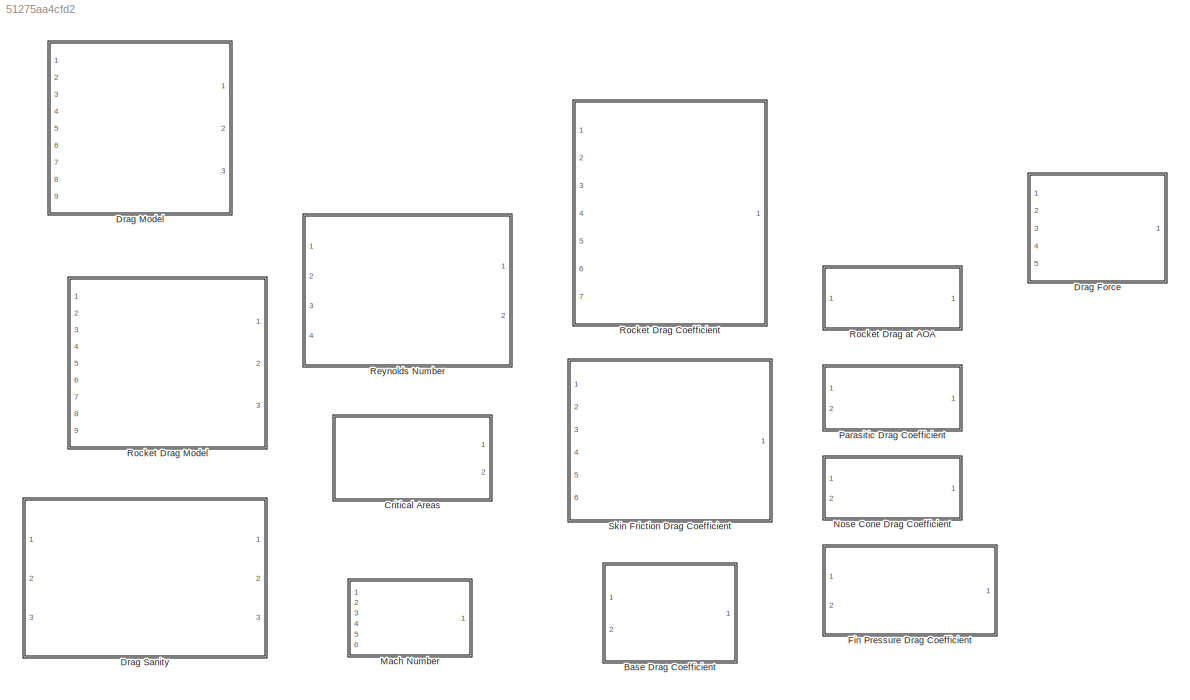
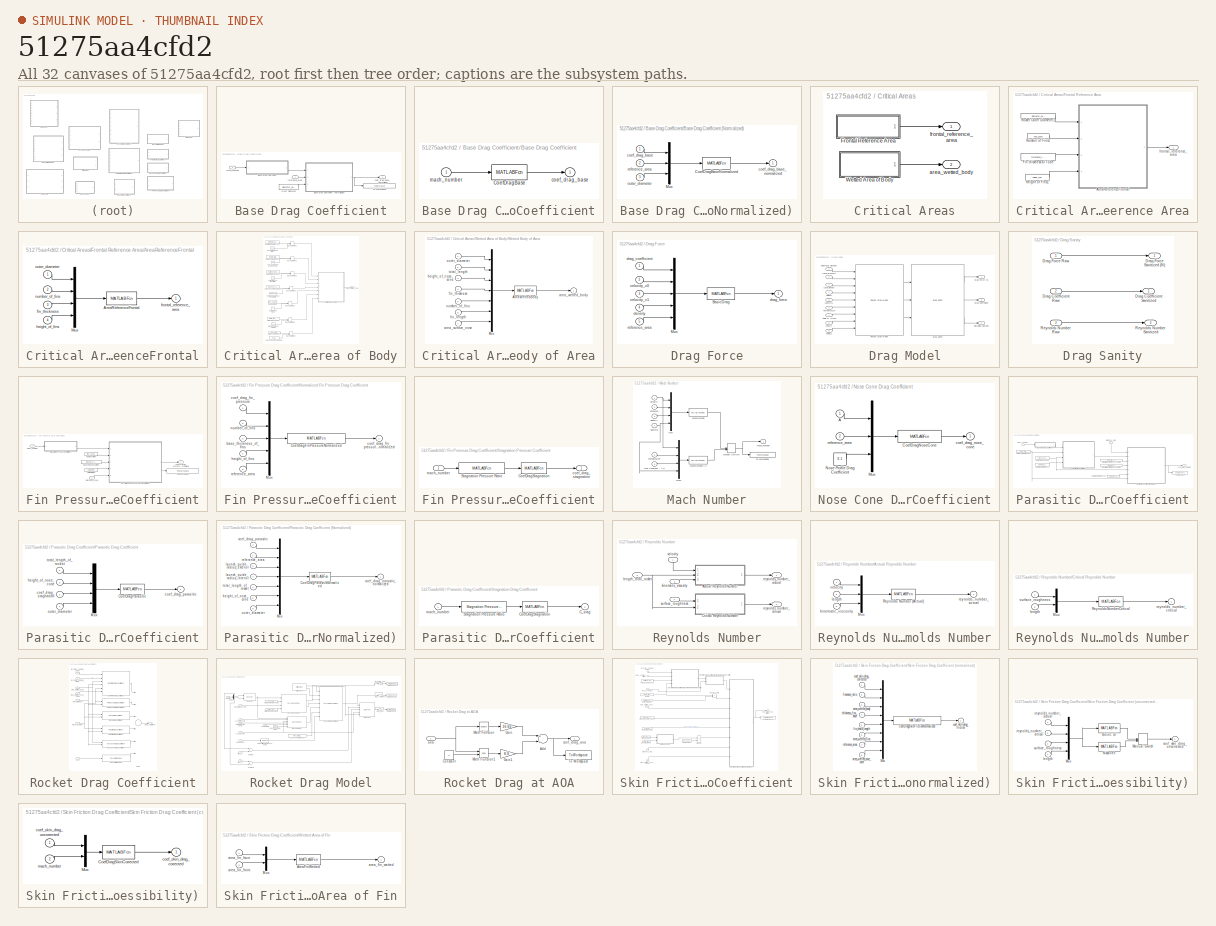
[diagram: thumbnail index - all 32 canvases of the model, root first then tree order]
MODEL slx_51275aa4cfd2
KIND library
CONFIG AbsTol = auto
CONFIG FixedStep = auto
CONFIG MaxStep = auto
CONFIG MinStep = auto
CONFIG RelTol = 1e-3
CONFIG SampleTimeConstraint = Unconstrained
CONFIG Solver = ode45
CONFIG SolverMode = Auto
CONFIG SolverName = ode45
CONFIG StartTime = 0.0
CONFIG StopTime = 10.0
BLOCK [SubSystem] Base Drag Coefficient
  Ports = [2, 1]
  RequestExecContextInheritance = off
BLOCK [SubSystem] Base Drag Coefficient/Base Drag Coefficient
  ErrorFcn = Stateflow.Translate.translate
  PermitHierarchicalResolution = ExplicitOnly
  Ports = [1, 1]
  RequestExecContextInheritance = off
  TreatAsAtomicUnit = on
BLOCK [SubSystem] Base Drag Coefficient/Base Drag Coefficient (Normalized)
  ErrorFcn = Stateflow.Translate.translate
  PermitHierarchicalResolution = ExplicitOnly
  Ports = [3, 1]
  RequestExecContextInheritance = off
  TreatAsAtomicUnit = on
BLOCK [MATLABFcn] Base Drag Coefficient/Base Drag Coefficient (Normalized)/CoefDragBaseNormalized
  MATLABFcn = CoefDragBaseNormalized
  Ports = [1, 1]
BLOCK [Mux] Base Drag Coefficient/Base Drag Coefficient (Normalized)/Mux
  DisplayOption = bar
  Inputs = 3
  Ports = [3, 1]
BLOCK [Inport] Base Drag Coefficient/Base Drag Coefficient (Normalized)/coef_drag_base
  IconDisplay = Port number
BLOCK [Outport] Base Drag Coefficient/Base Drag Coefficient (Normalized)/coef_drag_base_normalized
  IconDisplay = Port number
BLOCK [Inport] Base Drag Coefficient/Base Drag Coefficient (Normalized)/outer_diameter
  IconDisplay = Port number
  Port = 3
BLOCK [Inport] Base Drag Coefficient/Base Drag Coefficient (Normalized)/reference_area
  IconDisplay = Port number
  Port = 2
BLOCK [MATLABFcn] Base Drag Coefficient/Base Drag Coefficient/CoefDragBase
  MATLABFcn = CoefDragBase
  Ports = [1, 1]
BLOCK [Outport] Base Drag Coefficient/Base Drag Coefficient/coef_drag_base
  IconDisplay = Port number
BLOCK [Inport] Base Drag Coefficient/Base Drag Coefficient/mach_number
  IconDisplay = Port number
BLOCK [Constant] Base Drag Coefficient/Outer Diameter
  Value = diameter_outer
BLOCK [ToWorkspace] Base Drag Coefficient/To Workspace
  FixptAsFi = on
  MaxDataPoints = inf
  Ports = [1]
  SampleTime = -1
  Save2DSignal = 3-D array (concatenate along third dimension)
  VariableName = coef_drag_base_normalized
BLOCK [Outport] Base Drag Coefficient/coef_drag_base_normalized
  IconDisplay = Port number
BLOCK [Inport] Base Drag Coefficient/mach_number
  IconDisplay = Port number
  Port = 2
BLOCK [Inport] Base Drag Coefficient/reference_area
  IconDisplay = Port number
BLOCK [SubSystem] Critical Areas
  Ports = [0, 2]
  RequestExecContextInheritance = off
BLOCK [SubSystem] Critical Areas/Frontal Reference Area
  Ports = [0, 1]
  RequestExecContextInheritance = off
  TreatAsAtomicUnit = on
BLOCK [SubSystem] Critical Areas/Frontal Reference Area/AreaReferenceFrontal
  ErrorFcn = Stateflow.Translate.translate
  PermitHierarchicalResolution = ExplicitOnly
  Ports = [4, 1]
  RequestExecContextInheritance = off
  TreatAsAtomicUnit = on
BLOCK [MATLABFcn] Critical Areas/Frontal Reference Area/AreaReferenceFrontal/AreaReferenceFrontal
  MATLABFcn = AreaReferenceFrontal
  Ports = [1, 1]
BLOCK [Mux] Critical Areas/Frontal Reference Area/AreaReferenceFrontal/Mux
  DisplayOption = bar
  Ports = [4, 1]
BLOCK [Inport] Critical Areas/Frontal Reference Area/AreaReferenceFrontal/fin_thickness
  IconDisplay = Port number
  Port = 3
BLOCK [Outport] Critical Areas/Frontal Reference Area/AreaReferenceFrontal/frontal_reference_area
  IconDisplay = Port number
BLOCK [Inport] Critical Areas/Frontal Reference Area/AreaReferenceFrontal/height_of_fins
  IconDisplay = Port number
  Port = 4
BLOCK [Inport] Critical Areas/Frontal Reference Area/AreaReferenceFrontal/number_of_fins
  IconDisplay = Port number
  Port = 2
BLOCK [Inport] Critical Areas/Frontal Reference Area/AreaReferenceFrontal/outer_diameter
  IconDisplay = Port number
BLOCK [Constant] Critical Areas/Frontal Reference Area/Fin thickness at Tube
  Value = thickness_fins_at_tube
BLOCK [Constant] Critical Areas/Frontal Reference Area/Height of Fins1
  Value = height_fins
BLOCK [Constant] Critical Areas/Frontal Reference Area/Number of Fins1
  Value = fins_count
BLOCK [Constant] Critical Areas/Frontal Reference Area/Rocket Outer Diameter1
  Value = diameter_outer
BLOCK [Outport] Critical Areas/Frontal Reference Area/frontal_reference_area
  IconDisplay = Port number
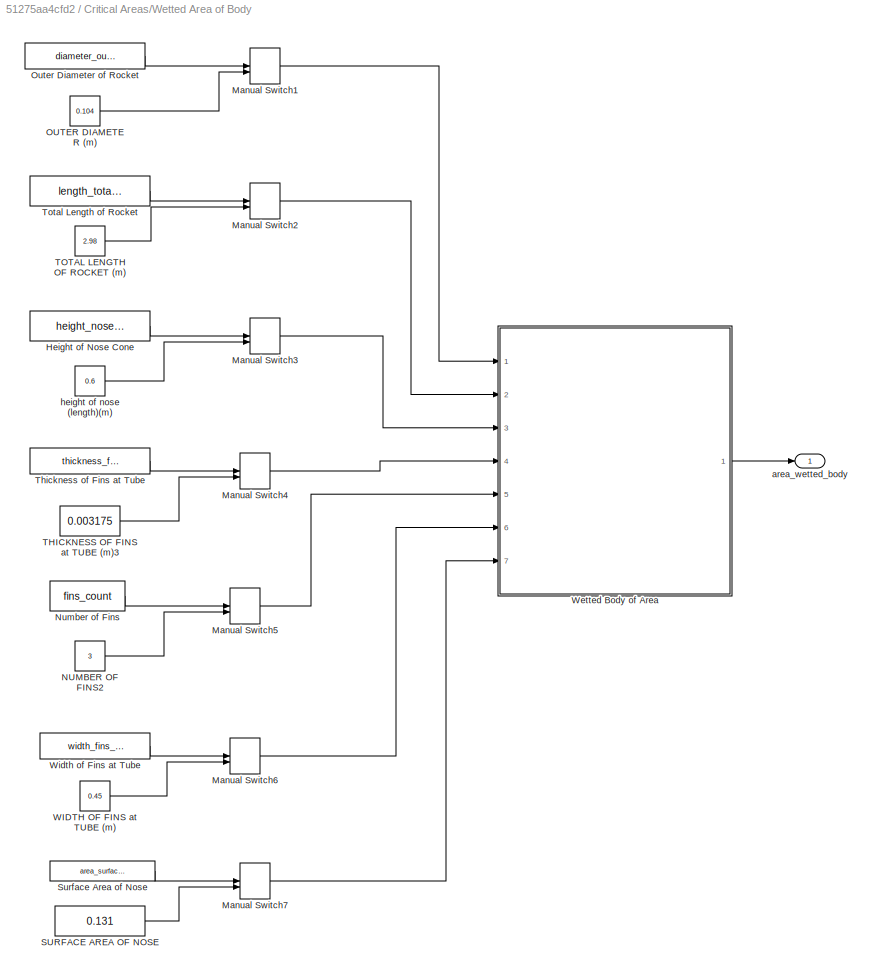
BLOCK [SubSystem] Critical Areas/Wetted Area of Body
  Ports = [0, 1]
  RequestExecContextInheritance = off
  TreatAsAtomicUnit = on
BLOCK [Constant] Critical Areas/Wetted Area of Body/Height of Nose Cone
  Value = height_nose_cone
BLOCK [ManualSwitch] Critical Areas/Wetted Area of Body/Manual Switch1
BLOCK [ManualSwitch] Critical Areas/Wetted Area of Body/Manual Switch2
BLOCK [ManualSwitch] Critical Areas/Wetted Area of Body/Manual Switch3
BLOCK [ManualSwitch] Critical Areas/Wetted Area of Body/Manual Switch4
BLOCK [ManualSwitch] Critical Areas/Wetted Area of Body/Manual Switch5
BLOCK [ManualSwitch] Critical Areas/Wetted Area of Body/Manual Switch6
BLOCK [ManualSwitch] Critical Areas/Wetted Area of Body/Manual Switch7
BLOCK [Constant] Critical Areas/Wetted Area of Body/NUMBER OF FINS2
  Value = 3
BLOCK [Constant] Critical Areas/Wetted Area of Body/Number of Fins
  Value = fins_count
BLOCK [Constant] Critical Areas/Wetted Area of Body/OUTER DIAMETER (m)
  Value = 0.104
BLOCK [Constant] Critical Areas/Wetted Area of Body/Outer Diameter of Rocket
  Value = diameter_outer
BLOCK [Constant] Critical Areas/Wetted Area of Body/SURFACE AREA OF NOSE
  Value = 0.131
BLOCK [Constant] Critical Areas/Wetted Area of Body/Surface Area of Nose
  Value = area_surface_nose
BLOCK [Constant] Critical Areas/Wetted Area of Body/THICKNESS OF FINS at TUBE (m)3
  Value = 0.003175
BLOCK [Constant] Critical Areas/Wetted Area of Body/TOTAL LENGTH OF ROCKET (m)
  Value = 2.98
BLOCK [Constant] Critical Areas/Wetted Area of Body/Thickness of Fins at Tube
  Value = thickness_fins_at_tube
BLOCK [Constant] Critical Areas/Wetted Area of Body/Total Length of Rocket
  Value = length_total_rocket
BLOCK [Constant] Critical Areas/Wetted Area of Body/WIDTH OF FINS at TUBE (m)
  Value = 0.45
BLOCK [SubSystem] Critical Areas/Wetted Area of Body/Wetted Body of Area
  ErrorFcn = Stateflow.Translate.translate
  PermitHierarchicalResolution = ExplicitOnly
  Ports = [7, 1]
  RequestExecContextInheritance = off
  TreatAsAtomicUnit = on
BLOCK [MATLABFcn] Critical Areas/Wetted Area of Body/Wetted Body of Area/AreaWettedBody
  MATLABFcn = AreaWettedBody
  Ports = [1, 1]
BLOCK [Mux] Critical Areas/Wetted Area of Body/Wetted Body of Area/Mux
  DisplayOption = bar
  Inputs = 7
  Ports = [7, 1]
BLOCK [Inport] Critical Areas/Wetted Area of Body/Wetted Body of Area/area_surface_nose
  IconDisplay = Port number
  Port = 7
BLOCK [Outport] Critical Areas/Wetted Area of Body/Wetted Body of Area/area_wetted_body
  IconDisplay = Port number
BLOCK [Inport] Critical Areas/Wetted Area of Body/Wetted Body of Area/fin_length
  IconDisplay = Port number
  Port = 6
BLOCK [Inport] Critical Areas/Wetted Area of Body/Wetted Body of Area/fin_thickness
  IconDisplay = Port number
  Port = 4
BLOCK [Inport] Critical Areas/Wetted Area of Body/Wetted Body of Area/height_of_nose_cone
  IconDisplay = Port number
  Port = 3
BLOCK [Inport] Critical Areas/Wetted Area of Body/Wetted Body of Area/number_of_fins
  IconDisplay = Port number
  Port = 5
BLOCK [Inport] Critical Areas/Wetted Area of Body/Wetted Body of Area/outer_diameter
  IconDisplay = Port number
BLOCK [Inport] Critical Areas/Wetted Area of Body/Wetted Body of Area/total_length
  IconDisplay = Port number
  Port = 2
BLOCK [Constant] Critical Areas/Wetted Area of Body/Width of Fins at Tube
  Value = width_fins_at_tube
BLOCK [Outport] Critical Areas/Wetted Area of Body/area_wetted_body
  IconDisplay = Port number
BLOCK [Constant] Critical Areas/Wetted Area of Body/height of nose (length)(m)
  Value = 0.6
BLOCK [Outport] Critical Areas/area_wetted_body
  IconDisplay = Port number
  Port = 2
BLOCK [Outport] Critical Areas/frontal_reference_area
  IconDisplay = Port number
BLOCK [SubSystem] Drag Force
  ErrorFcn = Stateflow.Translate.translate
  PermitHierarchicalResolution = ExplicitOnly
  Ports = [5, 1]
  RequestExecContextInheritance = off
BLOCK [MATLABFcn] Drag Force/BasicDrag
  MATLABFcn = BasicDrag
  Ports = [1, 1]
BLOCK [Mux] Drag Force/Mux
  DisplayOption = bar
  Inputs = 5
  Ports = [5, 1]
BLOCK [Inport] Drag Force/density
  IconDisplay = Port number
  Port = 4
BLOCK [Inport] Drag Force/drag_coefficient
  IconDisplay = Port number
BLOCK [Outport] Drag Force/drag_force
  IconDisplay = Port number
BLOCK [Inport] Drag Force/reference_area
  IconDisplay = Port number
  Port = 5
BLOCK [Inport] Drag Force/velocity_x0
  IconDisplay = Port number
  Port = 2
BLOCK [Inport] Drag Force/velocity_x1
  IconDisplay = Port number
  Port = 3
BLOCK [SubSystem] Drag Model
  Ports = [9, 3]
  RequestExecContextInheritance = off
BLOCK [Inport] Drag Model/Angle of Attack
  IconDisplay = Port number
  Port = 7
BLOCK [Outport] Drag Model/Drag Coefficient
  IconDisplay = Port number
  Port = 2
BLOCK [Outport] Drag Model/Drag Force (N)
  IconDisplay = Port number
BLOCK [Reference] Drag Model/Drag Sanity  REF=rocket_drag_library/Drag Sanity  (lib defined in slx_51275aa4cfd2)
  Ports = [3, 3]
  SourceBlock = rocket_drag_library/Drag Sanity
  SourceType = SubSystem
BLOCK [Inport] Drag Model/Kinematic Viscosity
  IconDisplay = Port number
BLOCK [Inport] Drag Model/Local Density
  IconDisplay = Port number
  Port = 3
BLOCK [Inport] Drag Model/Local Pressure
  IconDisplay = Port number
  Port = 2
BLOCK [Outport] Drag Model/Reynolds Number
  IconDisplay = Port number
  Port = 3
BLOCK [Reference] Drag Model/Rocket Drag Model  REF=rocket_drag_library/Rocket Drag Model  (lib defined in slx_51275aa4cfd2)
  Ports = [9, 3]
  SourceBlock = rocket_drag_library/Rocket Drag Model
  SourceType = SubSystem
BLOCK [Inport] Drag Model/Temperature
  IconDisplay = Port number
  Port = 6
BLOCK [Inport] Drag Model/Velocity
  IconDisplay = Port number
  Port = 4
BLOCK [Inport] Drag Model/Wind_0
  IconDisplay = Port number
  Port = 8
BLOCK [Inport] Drag Model/Wind_1
  IconDisplay = Port number
  Port = 9
BLOCK [Inport] Drag Model/\gamma
  IconDisplay = Port number
  Port = 5
BLOCK [SubSystem] Drag Sanity
  Ports = [3, 3]
  RequestExecContextInheritance = off
BLOCK [Inport] Drag Sanity/Drag Coefficient Raw
  IconDisplay = Port number
  Port = 2
BLOCK [Outport] Drag Sanity/Drag Coefficient Sanitized
  IconDisplay = Port number
  Port = 2
BLOCK [Inport] Drag Sanity/Drag Force Raw
  IconDisplay = Port number
BLOCK [Outport] Drag Sanity/Drag Force Sanitized (N)
  IconDisplay = Port number
BLOCK [Inport] Drag Sanity/Reynolds Number Raw
  IconDisplay = Port number
  Port = 3
BLOCK [Outport] Drag Sanity/Reynolds Number Sanitized
  IconDisplay = Port number
  Port = 3
BLOCK [SubSystem] Fin Pressure Drag Coefficient
  Ports = [2, 1]
  RequestExecContextInheritance = off
BLOCK [Constant] Fin Pressure Drag Coefficient/Base Thickness of Fins
  Value = thickness_fins_at_tube
BLOCK [Constant] Fin Pressure Drag Coefficient/Height of Fins
  Value = height_fins
BLOCK [SubSystem] Fin Pressure Drag Coefficient/Normalized Fin Pressure Drag Coefficient
  ErrorFcn = Stateflow.Translate.translate
  PermitHierarchicalResolution = ExplicitOnly
  Ports = [5, 1]
  RequestExecContextInheritance = off
  TreatAsAtomicUnit = on
BLOCK [Inport] Fin Pressure Drag Coefficient/Normalized Fin Pressure Drag Coefficient/ coef_drag_fin_pressure
  IconDisplay = Port number
BLOCK [MATLABFcn] Fin Pressure Drag Coefficient/Normalized Fin Pressure Drag Coefficient/CoefDragFinPressureNormalized
  MATLABFcn = CoefDragFinPressureNormalized
  Ports = [1, 1]
BLOCK [Mux] Fin Pressure Drag Coefficient/Normalized Fin Pressure Drag Coefficient/Mux
  DisplayOption = bar
  Inputs = 5
  Ports = [5, 1]
BLOCK [Inport] Fin Pressure Drag Coefficient/Normalized Fin Pressure Drag Coefficient/base_thickness_of_fins
  IconDisplay = Port number
  Port = 3
BLOCK [Outport] Fin Pressure Drag Coefficient/Normalized Fin Pressure Drag Coefficient/coef_drag_fin_pressure_normalized
  IconDisplay = Port number
BLOCK [Inport] Fin Pressure Drag Coefficient/Normalized Fin Pressure Drag Coefficient/height_of_fins
  IconDisplay = Port number
  Port = 4
BLOCK [Inport] Fin Pressure Drag Coefficient/Normalized Fin Pressure Drag Coefficient/number_of_fins
  IconDisplay = Port number
  Port = 2
BLOCK [Inport] Fin Pressure Drag Coefficient/Normalized Fin Pressure Drag Coefficient/reference_area
  IconDisplay = Port number
  Port = 5
BLOCK [Constant] Fin Pressure Drag Coefficient/Number of Fins
  Value = fins_count
BLOCK [SubSystem] Fin Pressure Drag Coefficient/Stagnation Pressure Coefficient
  Ports = [1, 1]
  RequestExecContextInheritance = off
  TreatAsAtomicUnit = on
BLOCK [MATLABFcn] Fin Pressure Drag Coefficient/Stagnation Pressure Coefficient/CoefDragStagnation
  MATLABFcn = CoefDragStagnation
  Ports = [1, 1]
BLOCK [MATLABFcn] Fin Pressure Drag Coefficient/Stagnation Pressure Coefficient/Stagnation Pressure Ratio
  MATLABFcn = StagnationPressureRatio
  Ports = [1, 1]
BLOCK [Outport] Fin Pressure Drag Coefficient/Stagnation Pressure Coefficient/coef_drag_stagnation
  IconDisplay = Port number
BLOCK [Inport] Fin Pressure Drag Coefficient/Stagnation Pressure Coefficient/mach_number
  IconDisplay = Port number
BLOCK [ToWorkspace] Fin Pressure Drag Coefficient/To Workspace
  FixptAsFi = on
  MaxDataPoints = inf
  Ports = [1]
  SampleTime = -1
  Save2DSignal = 3-D array (concatenate along third dimension)
  VariableName = coef_drag_fin_pressure_normalized
BLOCK [Outport] Fin Pressure Drag Coefficient/coef_drag_fin_pressure_normalized
  IconDisplay = Port number
BLOCK [Inport] Fin Pressure Drag Coefficient/mach_number
  IconDisplay = Port number
BLOCK [Inport] Fin Pressure Drag Coefficient/reference_area
  IconDisplay = Port number
  Port = 2
BLOCK [SubSystem] Mach Number
  ErrorFcn = Stateflow.Translate.translate
  PermitHierarchicalResolution = ExplicitOnly
  Ports = [6, 1]
  RequestExecContextInheritance = off
  TreatAsAtomicUnit = on
BLOCK [Inport] Mach Number/Gas Constant - Air
  IconDisplay = Port number
  Port = 6
BLOCK [MATLABFcn] Mach Number/MachNumber
  MATLABFcn = MachNumber
  Ports = [1, 1]
BLOCK [MATLABFcn] Mach Number/MachNumberAlt
  MATLABFcn = MachNumberAlt
  Ports = [1, 1]
BLOCK [ManualSwitch] Mach Number/Manual Switch
  CurrentSetting = 0
BLOCK [Mux] Mach Number/Mux
  DisplayOption = bar
  Ports = [4, 1]
BLOCK [Mux] Mach Number/Mux1
  DisplayOption = bar
  Ports = [4, 1]
BLOCK [ToWorkspace] Mach Number/To Workspace
  FixptAsFi = on
  MaxDataPoints = inf
  Ports = [1]
  SampleTime = -1
  Save2DSignal = 3-D array (concatenate along third dimension)
  VariableName = mach_number
BLOCK [Inport] Mach Number/density
  IconDisplay = Port number
  Port = 3
BLOCK [Inport] Mach Number/gamma
  IconDisplay = Port number
  Port = 4
BLOCK [Outport] Mach Number/mach_number
  IconDisplay = Port number
BLOCK [Inport] Mach Number/pressure
  IconDisplay = Port number
  Port = 2
BLOCK [Inport] Mach Number/temperature
  IconDisplay = Port number
  Port = 5
BLOCK [Inport] Mach Number/velocity
  IconDisplay = Port number
BLOCK [SubSystem] Nose Cone Drag Coefficient
  ErrorFcn = Stateflow.Translate.translate
  PermitHierarchicalResolution = ExplicitOnly
  Ports = [2, 1]
  RequestExecContextInheritance = off
BLOCK [Inport] Nose Cone Drag Coefficient/A
  IconDisplay = Port number
BLOCK [MATLABFcn] Nose Cone Drag Coefficient/CoefDragNoseCone
  MATLABFcn = CoefDragNoseCone
  Ports = [1, 1]
BLOCK [Mux] Nose Cone Drag Coefficient/Mux
  DisplayOption = bar
  Inputs = 3
  Ports = [3, 1]
BLOCK [Constant] Nose Cone Drag Coefficient/Nose Profile Drag Coefficient
  Value = 0.1
BLOCK [Outport] Nose Cone Drag Coefficient/coef_drag_nose_cone
  IconDisplay = Port number
BLOCK [Inport] Nose Cone Drag Coefficient/reference_area
  IconDisplay = Port number
  Port = 2
BLOCK [SubSystem] Parasitic Drag Coefficient
  Ports = [2, 1]
  RequestExecContextInheritance = off
BLOCK [Constant] Parasitic Drag Coefficient/Heigh of Noce Cone
  Value = height_nose_cone
BLOCK [Constant] Parasitic Drag Coefficient/Inner Diameter of Launch Guide
  Value = diameter_inner_launch_guide
BLOCK [Constant] Parasitic Drag Coefficient/Outer Diameter of Launch Guide
  Value = diameter_outer_launch_guide
BLOCK [Constant] Parasitic Drag Coefficient/Outer Diameter of Rocket
  Value = diameter_outer
BLOCK [Constant] Parasitic Drag Coefficient/Outer Diameter of rocket
  Value = diameter_outer
BLOCK [SubSystem] Parasitic Drag Coefficient/Parasitic Drag Coefficient
  ErrorFcn = Stateflow.Translate.translate
  PermitHierarchicalResolution = ExplicitOnly
  Ports = [4, 1]
  RequestExecContextInheritance = off
  TreatAsAtomicUnit = on
BLOCK [SubSystem] Parasitic Drag Coefficient/Parasitic Drag Coefficient (Normalized)
  ErrorFcn = Stateflow.Translate.translate
  PermitHierarchicalResolution = ExplicitOnly
  Ports = [7, 1]
  RequestExecContextInheritance = off
  TreatAsAtomicUnit = on
BLOCK [MATLABFcn] Parasitic Drag Coefficient/Parasitic Drag Coefficient (Normalized)/CoefDragParasiticNormalized
  MATLABFcn = CoefDragParasiticNormalized
  Ports = [1, 1]
BLOCK [Mux] Parasitic Drag Coefficient/Parasitic Drag Coefficient (Normalized)/Mux
  DisplayOption = bar
  Inputs = 7
  Ports = [7, 1]
BLOCK [Inport] Parasitic Drag Coefficient/Parasitic Drag Coefficient (Normalized)/coef_drag_parasitic
  IconDisplay = Port number
  Port = 2
BLOCK [Outport] Parasitic Drag Coefficient/Parasitic Drag Coefficient (Normalized)/coef_drag_parasitic_normalized 
  IconDisplay = Port number
BLOCK [Inport] Parasitic Drag Coefficient/Parasitic Drag Coefficient (Normalized)/height_of_nose_cone
  IconDisplay = Port number
  Port = 5
BLOCK [Inport] Parasitic Drag Coefficient/Parasitic Drag Coefficient (Normalized)/launch_guide_radius_exterior
  IconDisplay = Port number
  Port = 3
BLOCK [Inport] Parasitic Drag Coefficient/Parasitic Drag Coefficient (Normalized)/launch_guide_radius_interior
  IconDisplay = Port number
  Port = 4
BLOCK [Inport] Parasitic Drag Coefficient/Parasitic Drag Coefficient (Normalized)/outer_diameter
  IconDisplay = Port number
  Port = 6
BLOCK [Inport] Parasitic Drag Coefficient/Parasitic Drag Coefficient (Normalized)/reference_area
  IconDisplay = Port number
BLOCK [Inport] Parasitic Drag Coefficient/Parasitic Drag Coefficient (Normalized)/total_length_of_rocket
  IconDisplay = Port number
  Port = 7
BLOCK [MATLABFcn] Parasitic Drag Coefficient/Parasitic Drag Coefficient/CoefDragParasitic
  MATLABFcn = CoefDragParasitic
  Ports = [1, 1]
BLOCK [Mux] Parasitic Drag Coefficient/Parasitic Drag Coefficient/Mux
  DisplayOption = bar
  Ports = [4, 1]
BLOCK [Outport] Parasitic Drag Coefficient/Parasitic Drag Coefficient/coef_drag_parasitic
  IconDisplay = Port number
BLOCK [Inport] Parasitic Drag Coefficient/Parasitic Drag Coefficient/coef_drag_stagnation
  IconDisplay = Port number
BLOCK [Inport] Parasitic Drag Coefficient/Parasitic Drag Coefficient/height_of_nose_cone
  IconDisplay = Port number
  Port = 3
BLOCK [Inport] Parasitic Drag Coefficient/Parasitic Drag Coefficient/outer_diameter
  IconDisplay = Port number
  Port = 4
BLOCK [Inport] Parasitic Drag Coefficient/Parasitic Drag Coefficient/total_length_of_rocket
  IconDisplay = Port number
  Port = 2
BLOCK [SubSystem] Parasitic Drag Coefficient/Stagnation Drag Coefficient
  ErrorFcn = Stateflow.Translate.translate
  PermitHierarchicalResolution = ExplicitOnly
  Ports = [1, 1]
  RequestExecContextInheritance = off
  TreatAsAtomicUnit = on
BLOCK [Outport] Parasitic Drag Coefficient/Stagnation Drag Coefficient/C_stag
  IconDisplay = Port number
BLOCK [MATLABFcn] Parasitic Drag Coefficient/Stagnation Drag Coefficient/CoefDragStagnation
  MATLABFcn = CoefDragStagnation
  Ports = [1, 1]
BLOCK [Reference] Parasitic Drag Coefficient/Stagnation Drag Coefficient/Stagnation Pressure Ratio  REF=rocket_drag_library/Fin Pressure Drag Coefficient/Stagnation Pressure Coefficient/Stagnation Pressure Ratio  (lib defined in slx_51275aa4cfd2)
  Ports = [1, 1]
  SourceBlock = rocket_drag_library/Fin Pressure Drag Coefficient/Stagnation Pressure Coefficient/Stagnation Pressure Ratio
BLOCK [Inport] Parasitic Drag Coefficient/Stagnation Drag Coefficient/mach_number
  IconDisplay = Port number
BLOCK [ToWorkspace] Parasitic Drag Coefficient/To Workspace
  FixptAsFi = on
  MaxDataPoints = inf
  Ports = [1]
  SampleTime = -1
  Save2DSignal = 3-D array (concatenate along third dimension)
  VariableName = coef_drag_parasitic
BLOCK [Constant] Parasitic Drag Coefficient/Total Length of Rocket
  Value = length_total_rocket
BLOCK [Outport] Parasitic Drag Coefficient/coef_drag_parasitic
  IconDisplay = Port number
BLOCK [Inport] Parasitic Drag Coefficient/mach_number
  IconDisplay = Port number
BLOCK [Inport] Parasitic Drag Coefficient/reference_area
  IconDisplay = Port number
  Port = 2
BLOCK [SubSystem] Reynolds Number
  Ports = [4, 2]
  RequestExecContextInheritance = off
BLOCK [SubSystem] Reynolds Number/Actual Reynolds Number
  AncestorBlock = rocket_drag_library/Actual Reynolds Number
  ErrorFcn = Stateflow.Translate.translate
  PermitHierarchicalResolution = ExplicitOnly
  Ports = [3, 1]
  RequestExecContextInheritance = off
  TreatAsAtomicUnit = on
BLOCK [Mux] Reynolds Number/Actual Reynolds Number/Mux
  DisplayOption = bar
  Inputs = 3
  Ports = [3, 1]
BLOCK [MATLABFcn] Reynolds Number/Actual Reynolds Number/Reynolds Number (Actual)
  MATLABFcn = ReynoldsNumberActual
  Output1D = off
  Ports = [1, 1]
BLOCK [Inport] Reynolds Number/Actual Reynolds Number/kinematic_viscosity
  IconDisplay = Port number
  Port = 3
BLOCK [Inport] Reynolds Number/Actual Reynolds Number/length
  IconDisplay = Port number
  Port = 2
BLOCK [Outport] Reynolds Number/Actual Reynolds Number/reynolds_number_actual
  IconDisplay = Port number
BLOCK [Inport] Reynolds Number/Actual Reynolds Number/velocity
  IconDisplay = Port number
BLOCK [SubSystem] Reynolds Number/Critical Reynolds Number
  AncestorBlock = rocket_drag_library/Critical Reynolds Number
  ErrorFcn = Stateflow.Translate.translate
  PermitHierarchicalResolution = ExplicitOnly
  Ports = [2, 1]
  RequestExecContextInheritance = off
  TreatAsAtomicUnit = on
BLOCK [Mux] Reynolds Number/Critical Reynolds Number/Mux
  DisplayOption = bar
  Inputs = 2
  Ports = [2, 1]
BLOCK [MATLABFcn] Reynolds Number/Critical Reynolds Number/ReynoldsNumberCritical
  MATLABFcn = ReynoldsNumberCritical
  Ports = [1, 1]
BLOCK [Inport] Reynolds Number/Critical Reynolds Number/length
  IconDisplay = Port number
  Port = 2
BLOCK [Outport] Reynolds Number/Critical Reynolds Number/reynolds_number_critical
  IconDisplay = Port number
BLOCK [Inport] Reynolds Number/Critical Reynolds Number/surface_roughness
  IconDisplay = Port number
BLOCK [Inport] Reynolds Number/kinematic_viscosity
  IconDisplay = Port number
  Port = 3
BLOCK [Inport] Reynolds Number/length_total_rocket
  IconDisplay = Port number
  Port = 2
BLOCK [Outport] Reynolds Number/reynolds_number_actual
  IconDisplay = Port number
BLOCK [Outport] Reynolds Number/reynolds_number_critical
  IconDisplay = Port number
  Port = 2
BLOCK [Inport] Reynolds Number/surface_roughness
  IconDisplay = Port number
  Port = 4
BLOCK [Inport] Reynolds Number/velocity
  IconDisplay = Port number
BLOCK [SubSystem] Rocket Drag Coefficient
  Ports = [7, 1]
  RequestExecContextInheritance = off
BLOCK [Reference] Rocket Drag Coefficient/Base Drag Coefficient  REF=rocket_drag_library/Base Drag Coefficient  (lib defined in slx_51275aa4cfd2)
  Ports = [2, 1]
  SourceBlock = rocket_drag_library/Base Drag Coefficient
  SourceType = SubSystem
BLOCK [Reference] Rocket Drag Coefficient/Fin Pressure Drag Coefficient  REF=rocket_drag_library/Fin Pressure Drag Coefficient  (lib defined in slx_51275aa4cfd2)
  Ports = [2, 1]
  SourceBlock = rocket_drag_library/Fin Pressure Drag Coefficient
  SourceType = SubSystem
BLOCK [Reference] Rocket Drag Coefficient/Nose Cone Drag Coefficient  REF=rocket_drag_library/Nose Cone Drag Coefficient  (lib defined in slx_51275aa4cfd2)
  Ports = [2, 1]
  SourceBlock = rocket_drag_library/Nose Cone Drag Coefficient
  SourceType = SubSystem
BLOCK [Reference] Rocket Drag Coefficient/Parasitic Drag Coefficient  REF=rocket_drag_library/Parasitic Drag Coefficient  (lib defined in slx_51275aa4cfd2)
  Ports = [2, 1]
  SourceBlock = rocket_drag_library/Parasitic Drag Coefficient
  SourceType = SubSystem
BLOCK [Reference] Rocket Drag Coefficient/Rocket Drag at AOA  REF=rocket_drag_library/Rocket Drag at AOA  (lib defined in slx_51275aa4cfd2)
  Ports = [1, 1]
  SourceBlock = rocket_drag_library/Rocket Drag at AOA
  SourceType = SubSystem
BLOCK [Reference] Rocket Drag Coefficient/Skin Friction Drag Coefficient  REF=rocket_drag_library/Skin Friction Drag Coefficient  (lib defined in slx_51275aa4cfd2)
  Ports = [6, 1]
  SourceBlock = rocket_drag_library/Skin Friction Drag Coefficient
  SourceType = SubSystem
BLOCK [Sum] Rocket Drag Coefficient/Sum2
  InputSameDT = off
  Inputs = ++++++
  OutDataTypeStr = Inherit: Inherit via internal rule
  Ports = [6, 1]
  SaturateOnIntegerOverflow = off
BLOCK [Inport] Rocket Drag Coefficient/aoa
  IconDisplay = Port number
  Port = 7
BLOCK [Inport] Rocket Drag Coefficient/area_reference
  IconDisplay = Port number
BLOCK [Inport] Rocket Drag Coefficient/area_wetted_body
  IconDisplay = Port number
  Port = 2
BLOCK [Inport] Rocket Drag Coefficient/area_wetted_nose_cone
  IconDisplay = Port number
  Port = 6
BLOCK [Outport] Rocket Drag Coefficient/drag_coefficient
  IconDisplay = Port number
BLOCK [Inport] Rocket Drag Coefficient/mach_number
  IconDisplay = Port number
  Port = 5
BLOCK [Inport] Rocket Drag Coefficient/reynolds_number_actual
  IconDisplay = Port number
  Port = 3
BLOCK [Inport] Rocket Drag Coefficient/reynolds_number_critical
  IconDisplay = Port number
  Port = 4
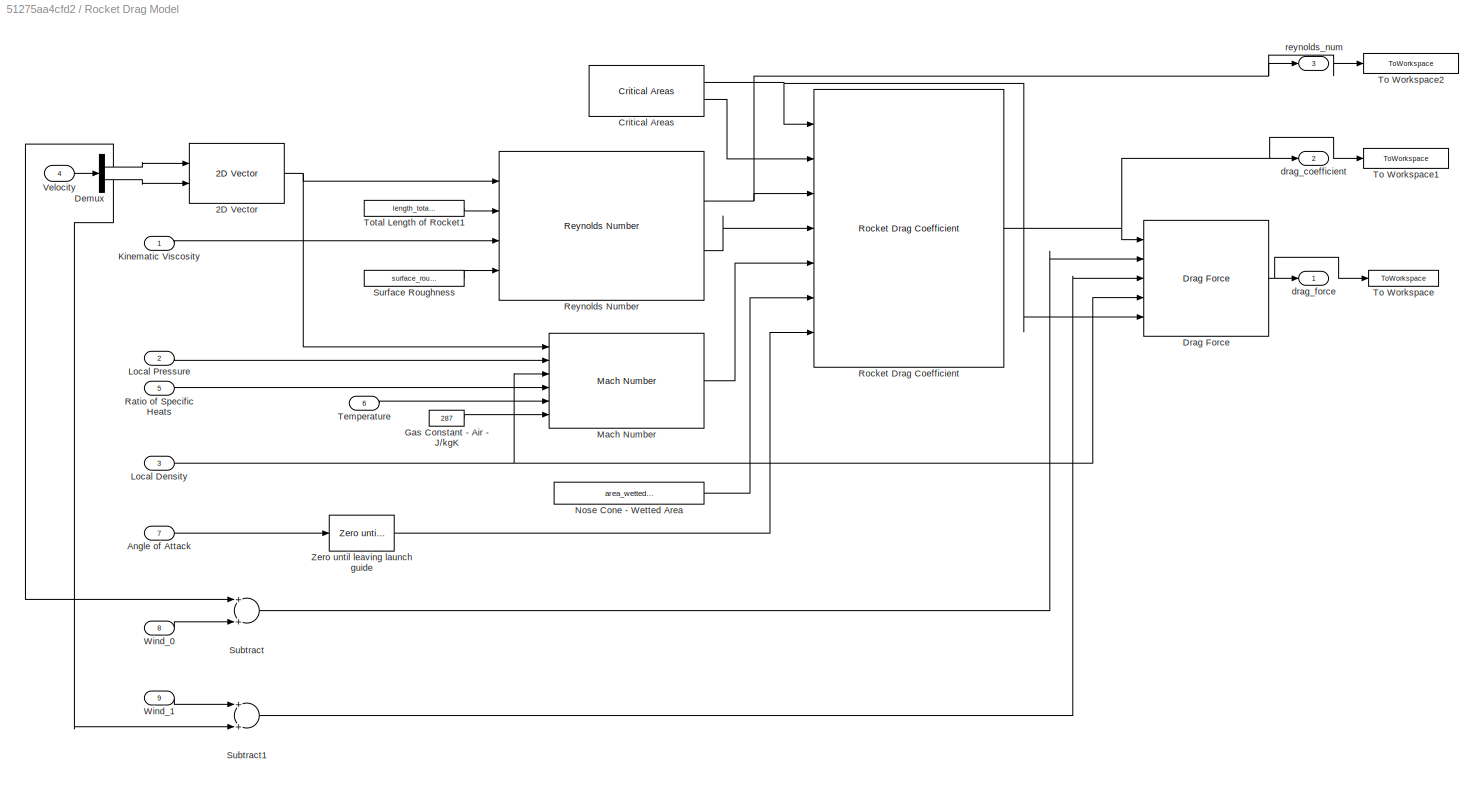
BLOCK [SubSystem] Rocket Drag Model
  Ports = [9, 3]
  RequestExecContextInheritance = off
BLOCK [Reference] Rocket Drag Model/2D Vector  REF=rocket_data_library/Parametric Input Data/2D Vector  (lib defined in slx_8538da7d43bf)
  Ports = [2, 3]
  SourceBlock = rocket_data_library/Parametric Input Data/2D Vector
  SourceType = SubSystem
BLOCK [Inport] Rocket Drag Model/Angle of Attack
  IconDisplay = Port number
  Port = 7
BLOCK [Reference] Rocket Drag Model/Critical Areas  REF=rocket_drag_library/Critical Areas  (lib defined in slx_51275aa4cfd2)
  Ports = [0, 2]
  SourceBlock = rocket_drag_library/Critical Areas
  SourceType = SubSystem
BLOCK [Demux] Rocket Drag Model/Demux
  DisplayOption = bar
  Outputs = 2
  Ports = [1, 2]
BLOCK [Reference] Rocket Drag Model/Drag Force  REF=rocket_drag_library/Drag Force  (lib defined in slx_51275aa4cfd2)
  Ports = [5, 1]
  SourceBlock = rocket_drag_library/Drag Force
  SourceType = SubSystem
BLOCK [Constant] Rocket Drag Model/Gas Constant - Air - J//kgK
  Value = 287
BLOCK [Inport] Rocket Drag Model/Kinematic Viscosity
  IconDisplay = Port number
BLOCK [Inport] Rocket Drag Model/Local Density
  IconDisplay = Port number
  Port = 3
BLOCK [Inport] Rocket Drag Model/Local Pressure
  IconDisplay = Port number
  Port = 2
BLOCK [Reference] Rocket Drag Model/Mach Number  REF=rocket_drag_library/Mach Number  (lib defined in slx_51275aa4cfd2)
  Ports = [6, 1]
  SourceBlock = rocket_drag_library/Mach Number
  SourceType = SubSystem
BLOCK [Constant] Rocket Drag Model/Nose Cone - Wetted Area
  Value = area_wetted_nose_cone
BLOCK [Inport] Rocket Drag Model/Ratio of Specific Heats
  IconDisplay = Port number
  Port = 5
BLOCK [Reference] Rocket Drag Model/Reynolds Number  REF=rocket_drag_library/Reynolds Number  (lib defined in slx_51275aa4cfd2)
  Ports = [4, 2]
  SourceBlock = rocket_drag_library/Reynolds Number
  SourceType = SubSystem
BLOCK [Reference] Rocket Drag Model/Rocket Drag Coefficient  REF=rocket_drag_library/Rocket Drag Coefficient  (lib defined in slx_51275aa4cfd2)
  Ports = [7, 1]
  SourceBlock = rocket_drag_library/Rocket Drag Coefficient
  SourceType = SubSystem
BLOCK [Sum] Rocket Drag Model/Subtract
  InputSameDT = off
  OutDataTypeStr = Inherit: Inherit via internal rule
  Ports = [2, 1]
  SaturateOnIntegerOverflow = off
BLOCK [Sum] Rocket Drag Model/Subtract1
  InputSameDT = off
  OutDataTypeStr = Inherit: Inherit via internal rule
  Ports = [2, 1]
  SaturateOnIntegerOverflow = off
BLOCK [Constant] Rocket Drag Model/Surface Roughness
  Value = surface_roughness
BLOCK [Inport] Rocket Drag Model/Temperature
  IconDisplay = Port number
  Port = 6
BLOCK [ToWorkspace] Rocket Drag Model/To Workspace
  FixptAsFi = on
  MaxDataPoints = inf
  Ports = [1]
  SampleTime = -1
  Save2DSignal = 3-D array (concatenate along third dimension)
  VariableName = drag_force
BLOCK [ToWorkspace] Rocket Drag Model/To Workspace1
  FixptAsFi = on
  MaxDataPoints = inf
  Ports = [1]
  SampleTime = -1
  Save2DSignal = 3-D array (concatenate along third dimension)
  VariableName = drag_coefficient
BLOCK [ToWorkspace] Rocket Drag Model/To Workspace2
  FixptAsFi = on
  MaxDataPoints = inf
  Ports = [1]
  SampleTime = -1
  Save2DSignal = 3-D array (concatenate along third dimension)
  VariableName = reynolds_number
BLOCK [Constant] Rocket Drag Model/Total Length of Rocket1
  Value = length_total_rocket
BLOCK [Inport] Rocket Drag Model/Velocity
  IconDisplay = Port number
  Port = 4
BLOCK [Inport] Rocket Drag Model/Wind_0
  IconDisplay = Port number
  Port = 8
BLOCK [Inport] Rocket Drag Model/Wind_1
  IconDisplay = Port number
  Port = 9
BLOCK [Reference] Rocket Drag Model/Zero until leaving launch guide  REF=rocket_angular_flight_library/Zero
until leaving
launch guide
  Ports = [1, 1]
  SourceBlock = rocket_angular_flight_library/Zero\nuntil leaving\nlaunch guide
  SourceType = SubSystem
BLOCK [Outport] Rocket Drag Model/drag_coefficient 
  IconDisplay = Port number
  Port = 2
BLOCK [Outport] Rocket Drag Model/drag_force
  IconDisplay = Port number
BLOCK [Outport] Rocket Drag Model/reynolds_num
  IconDisplay = Port number
  Port = 3
BLOCK [SubSystem] Rocket Drag at AOA
  Ports = [1, 1]
  RequestExecContextInheritance = off
BLOCK [Sum] Rocket Drag at AOA/Add
  InputSameDT = off
  OutDataTypeStr = Inherit: Inherit via internal rule
  Ports = [2, 1]
  SaturateOnIntegerOverflow = off
BLOCK [Constant] Rocket Drag at AOA/Constant
  Value = 3
BLOCK [Gain] Rocket Drag at AOA/Gain
  Gain = 16.83
  OutDataTypeStr = Inherit: Inherit via internal rule
  ParamDataTypeStr = Inherit: Inherit via internal rule
  SaturateOnIntegerOverflow = off
BLOCK [Gain] Rocket Drag at AOA/Gain1
  Gain = 8.9
  OutDataTypeStr = Inherit: Inherit via internal rule
  ParamDataTypeStr = Inherit: Inherit via internal rule
  SaturateOnIntegerOverflow = off
BLOCK [Math] Rocket Drag at AOA/Math Function
  Operator = square
  Ports = [1, 1]
BLOCK [Math] Rocket Drag at AOA/Math Function1
  Operator = pow
  Ports = [2, 1]
BLOCK [ToWorkspace] Rocket Drag at AOA/To Workspace
  FixptAsFi = on
  MaxDataPoints = inf
  Ports = [1]
  SampleTime = -1
  Save2DSignal = 3-D array (concatenate along third dimension)
  VariableName = coef_drag_aoa
BLOCK [Inport] Rocket Drag at AOA/aoa
  IconDisplay = Port number
BLOCK [Outport] Rocket Drag at AOA/coef_drag_aoa
  IconDisplay = Port number
BLOCK [SubSystem] Skin Friction Drag Coefficient
  Ports = [6, 1]
  RequestExecContextInheritance = off
BLOCK [Constant] Skin Friction Drag Coefficient/Fin Chord Length
  Value = height_fins
BLOCK [Constant] Skin Friction Drag Coefficient/Number of Fins
  Value = fins_count
BLOCK [Product] Skin Friction Drag Coefficient/Product
  InputSameDT = off
  OutDataTypeStr = Inherit: Inherit via internal rule
  Ports = [2, 1]
  RndMeth = Floor
  SaturateOnIntegerOverflow = off
BLOCK [SubSystem] Skin Friction Drag Coefficient/Skin Friction Drag Coefficient (corrected for compressibility)
  ErrorFcn = Stateflow.Translate.translate
  PermitHierarchicalResolution = ExplicitOnly
  Ports = [2, 1]
  RequestExecContextInheritance = off
  TreatAsAtomicUnit = on
BLOCK [MATLABFcn] Skin Friction Drag Coefficient/Skin Friction Drag Coefficient (corrected for compressibility)/CoefDragSkinCorrected
  MATLABFcn = CoefDragSkinCorrected
  Ports = [1, 1]
BLOCK [Mux] Skin Friction Drag Coefficient/Skin Friction Drag Coefficient (corrected for compressibility)/Mux
  DisplayOption = bar
  Inputs = 2
  Ports = [2, 1]
BLOCK [Outport] Skin Friction Drag Coefficient/Skin Friction Drag Coefficient (corrected for compressibility)/coef_skin_drag_corrected
  IconDisplay = Port number
BLOCK [Inport] Skin Friction Drag Coefficient/Skin Friction Drag Coefficient (corrected for compressibility)/coef_skin_drag_uncorrected
  IconDisplay = Port number
BLOCK [Inport] Skin Friction Drag Coefficient/Skin Friction Drag Coefficient (corrected for compressibility)/mach_number
  IconDisplay = Port number
  Port = 2
BLOCK [SubSystem] Skin Friction Drag Coefficient/Skin Friction Drag Coefficient (normalized)
  ErrorFcn = Stateflow.Translate.translate
  PermitHierarchicalResolution = ExplicitOnly
  Ports = [8, 1]
  RequestExecContextInheritance = off
  TreatAsAtomicUnit = on
BLOCK [MATLABFcn] Skin Friction Drag Coefficient/Skin Friction Drag Coefficient (normalized)/CoefDragSkinFrictionNormalized
  MATLABFcn = CoefDragSkinFrictionNormalized
  Ports = [1, 1]
BLOCK [Mux] Skin Friction Drag Coefficient/Skin Friction Drag Coefficient (normalized)/Mux
  DisplayOption = bar
  Inputs = 8
  Ports = [8, 1]
BLOCK [Inport] Skin Friction Drag Coefficient/Skin Friction Drag Coefficient (normalized)/area_wetted_body
  IconDisplay = Port number
  Port = 3
BLOCK [Inport] Skin Friction Drag Coefficient/Skin Friction Drag Coefficient (normalized)/area_wetted_fins
  IconDisplay = Port number
  Port = 6
BLOCK [Inport] Skin Friction Drag Coefficient/Skin Friction Drag Coefficient (normalized)/area_wetted_nose_cone
  IconDisplay = Port number
  Port = 8
BLOCK [Inport] Skin Friction Drag Coefficient/Skin Friction Drag Coefficient (normalized)/coef_skin_drag_corrected
  IconDisplay = Port number
BLOCK [Outport] Skin Friction Drag Coefficient/Skin Friction Drag Coefficient (normalized)/coef_skin_drag_friction
  IconDisplay = Port number
BLOCK [Inport] Skin Friction Drag Coefficient/Skin Friction Drag Coefficient (normalized)/fin_chord_length
  IconDisplay = Port number
  Port = 5
BLOCK [Inport] Skin Friction Drag Coefficient/Skin Friction Drag Coefficient (normalized)/fineness_ratio
  IconDisplay = Port number
  Port = 2
BLOCK [Inport] Skin Friction Drag Coefficient/Skin Friction Drag Coefficient (normalized)/reference_area
  IconDisplay = Port number
  Port = 7
BLOCK [Inport] Skin Friction Drag Coefficient/Skin Friction Drag Coefficient (normalized)/thickness_fins_base
  IconDisplay = Port number
  Port = 4
BLOCK [SubSystem] Skin Friction Drag Coefficient/Skin Friction Drag Coefficient (uncorrected for compressibility)
  ErrorFcn = Stateflow.Translate.translate
  PermitHierarchicalResolution = ExplicitOnly
  Ports = [4, 1]
  RequestExecContextInheritance = off
  TreatAsAtomicUnit = on
BLOCK [MATLABFcn] Skin Friction Drag Coefficient/Skin Friction Drag Coefficient (uncorrected for compressibility)/Box et. al
  MATLABFcn = CoefDragSkinUncorrected
  Ports = [1, 1]
BLOCK [ManualSwitch] Skin Friction Drag Coefficient/Skin Friction Drag Coefficient (uncorrected for compressibility)/Manual Switch
  CurrentSetting = 0
BLOCK [Mux] Skin Friction Drag Coefficient/Skin Friction Drag Coefficient (uncorrected for compressibility)/Mux
  DisplayOption = bar
  Ports = [4, 1]
BLOCK [MATLABFcn] Skin Friction Drag Coefficient/Skin Friction Drag Coefficient (uncorrected for compressibility)/Niskanen
  MATLABFcn = CoefDragSkinUncorrected_Niskanen
  Ports = [1, 1]
BLOCK [Outport] Skin Friction Drag Coefficient/Skin Friction Drag Coefficient (uncorrected for compressibility)/coef_skin_drag_uncorrected
  IconDisplay = Port number
BLOCK [Inport] Skin Friction Drag Coefficient/Skin Friction Drag Coefficient (uncorrected for compressibility)/length
  IconDisplay = Port number
  Port = 4
BLOCK [Inport] Skin Friction Drag Coefficient/Skin Friction Drag Coefficient (uncorrected for compressibility)/reynolds_number_actual
  IconDisplay = Port number
BLOCK [Inport] Skin Friction Drag Coefficient/Skin Friction Drag Coefficient (uncorrected for compressibility)/reynolds_number_critical
  IconDisplay = Port number
  Port = 2
BLOCK [Inport] Skin Friction Drag Coefficient/Skin Friction Drag Coefficient (uncorrected for compressibility)/surface_roughness
  IconDisplay = Port number
  Port = 3
BLOCK [ToWorkspace] Skin Friction Drag Coefficient/To Workspace
  FixptAsFi = on
  MaxDataPoints = inf
  Ports = [1]
  SampleTime = -1
  Save2DSignal = 3-D array (concatenate along third dimension)
  VariableName = coef_drag_skin_friction
BLOCK [SubSystem] Skin Friction Drag Coefficient/Wetted Area of Fin
  ErrorFcn = Stateflow.Translate.translate
  PermitHierarchicalResolution = ExplicitOnly
  Ports = [2, 1]
  RequestExecContextInheritance = off
  TreatAsAtomicUnit = on
BLOCK [MATLABFcn] Skin Friction Drag Coefficient/Wetted Area of Fin/AreaFinWetted
  MATLABFcn = AreaFinWetted
  Ports = [1, 1]
BLOCK [Mux] Skin Friction Drag Coefficient/Wetted Area of Fin/Mux
  DisplayOption = bar
  Inputs = 2
  Ports = [2, 1]
BLOCK [Inport] Skin Friction Drag Coefficient/Wetted Area of Fin/area_fin_face
  IconDisplay = Port number
BLOCK [Inport] Skin Friction Drag Coefficient/Wetted Area of Fin/area_fin_front
  IconDisplay = Port number
  Port = 2
BLOCK [Outport] Skin Friction Drag Coefficient/Wetted Area of Fin/area_fin_wetted
  IconDisplay = Port number
BLOCK [Constant] Skin Friction Drag Coefficient/area_fin_face
  Value = area_face_fin
BLOCK [Constant] Skin Friction Drag Coefficient/area_fin_frontal
  Value = area_fin_frontal
BLOCK [Inport] Skin Friction Drag Coefficient/area_wetted_body
  IconDisplay = Port number
  Port = 3
BLOCK [Inport] Skin Friction Drag Coefficient/area_wetted_nose_cone
  IconDisplay = Port number
  Port = 6
BLOCK [Outport] Skin Friction Drag Coefficient/coef_drag_skin_friction
  IconDisplay = Port number
BLOCK [Product] Skin Friction Drag Coefficient/fineness_ratio
  InputSameDT = off
  Inputs = */
  OutDataTypeStr = Inherit: Inherit via internal rule
  Ports = [2, 1]
  RndMeth = Floor
  SaturateOnIntegerOverflow = off
BLOCK [Constant] Skin Friction Drag Coefficient/length
  Value = length_total_rocket
BLOCK [Inport] Skin Friction Drag Coefficient/mach_number
  IconDisplay = Port number
  Port = 5
BLOCK [Constant] Skin Friction Drag Coefficient/outer_diameter
  Value = diameter_outer
BLOCK [Inport] Skin Friction Drag Coefficient/reference_area
  IconDisplay = Port number
  Port = 4
BLOCK [Inport] Skin Friction Drag Coefficient/reynolds_number_actual
  IconDisplay = Port number
BLOCK [Inport] Skin Friction Drag Coefficient/reynolds_number_critical
  IconDisplay = Port number
  Port = 2
BLOCK [Constant] Skin Friction Drag Coefficient/surface_roughness
  Value = surface_roughness
BLOCK [Constant] Skin Friction Drag Coefficient/thickness_fins_base
  Value = thickness_fins_at_tube
NET Base Drag Coefficient/Base Drag Coefficient (Normalized):1 -> Base Drag Coefficient/To Workspace:1, Base Drag Coefficient/coef_drag_base_normalized:1
LINE Base Drag Coefficient/Base Drag Coefficient:1 -> Base Drag Coefficient/Base Drag Coefficient (Normalized):1
LINE Base Drag Coefficient/Outer Diameter:1 -> Base Drag Coefficient/Base Drag Coefficient (Normalized):3
LINE Base Drag Coefficient/mach_number:1 -> Base Drag Coefficient/Base Drag Coefficient:1
LINE Base Drag Coefficient/reference_area:1 -> Base Drag Coefficient/Base Drag Coefficient (Normalized):2
LINE Critical Areas/Frontal Reference Area/AreaReferenceFrontal:1 -> Critical Areas/Frontal Reference Area/frontal_reference_area:1
LINE Critical Areas/Frontal Reference Area/Fin thickness at Tube:1 -> Critical Areas/Frontal Reference Area/AreaReferenceFrontal:3
LINE Critical Areas/Frontal Reference Area/Height of Fins1:1 -> Critical Areas/Frontal Reference Area/AreaReferenceFrontal:4
LINE Critical Areas/Frontal Reference Area/Number of Fins1:1 -> Critical Areas/Frontal Reference Area/AreaReferenceFrontal:2
LINE Critical Areas/Frontal Reference Area/Rocket Outer Diameter1:1 -> Critical Areas/Frontal Reference Area/AreaReferenceFrontal:1
LINE Critical Areas/Frontal Reference Area:1 -> Critical Areas/frontal_reference_area:1
LINE Critical Areas/Wetted Area of Body/Height of Nose Cone:1 -> Critical Areas/Wetted Area of Body/Manual Switch3:1
LINE Critical Areas/Wetted Area of Body/Manual Switch1:1 -> Critical Areas/Wetted Area of Body/Wetted Body of Area:1
LINE Critical Areas/Wetted Area of Body/Manual Switch2:1 -> Critical Areas/Wetted Area of Body/Wetted Body of Area:2
LINE Critical Areas/Wetted Area of Body/Manual Switch3:1 -> Critical Areas/Wetted Area of Body/Wetted Body of Area:3
LINE Critical Areas/Wetted Area of Body/Manual Switch4:1 -> Critical Areas/Wetted Area of Body/Wetted Body of Area:4
LINE Critical Areas/Wetted Area of Body/Manual Switch5:1 -> Critical Areas/Wetted Area of Body/Wetted Body of Area:5
LINE Critical Areas/Wetted Area of Body/Manual Switch6:1 -> Critical Areas/Wetted Area of Body/Wetted Body of Area:6
LINE Critical Areas/Wetted Area of Body/Manual Switch7:1 -> Critical Areas/Wetted Area of Body/Wetted Body of Area:7
LINE Critical Areas/Wetted Area of Body/NUMBER OF FINS2:1 -> Critical Areas/Wetted Area of Body/Manual Switch5:2
LINE Critical Areas/Wetted Area of Body/Number of Fins:1 -> Critical Areas/Wetted Area of Body/Manual Switch5:1
LINE Critical Areas/Wetted Area of Body/OUTER DIAMETER (m):1 -> Critical Areas/Wetted Area of Body/Manual Switch1:2
LINE Critical Areas/Wetted Area of Body/Outer Diameter of Rocket:1 -> Critical Areas/Wetted Area of Body/Manual Switch1:1
LINE Critical Areas/Wetted Area of Body/SURFACE AREA OF NOSE:1 -> Critical Areas/Wetted Area of Body/Manual Switch7:2
LINE Critical Areas/Wetted Area of Body/Surface Area of Nose:1 -> Critical Areas/Wetted Area of Body/Manual Switch7:1
LINE Critical Areas/Wetted Area of Body/THICKNESS OF FINS at TUBE (m)3:1 -> Critical Areas/Wetted Area of Body/Manual Switch4:2
LINE Critical Areas/Wetted Area of Body/TOTAL LENGTH OF ROCKET (m):1 -> Critical Areas/Wetted Area of Body/Manual Switch2:2
LINE Critical Areas/Wetted Area of Body/Thickness of Fins at Tube:1 -> Critical Areas/Wetted Area of Body/Manual Switch4:1
LINE Critical Areas/Wetted Area of Body/Total Length of Rocket:1 -> Critical Areas/Wetted Area of Body/Manual Switch2:1
LINE Critical Areas/Wetted Area of Body/WIDTH OF FINS at TUBE (m):1 -> Critical Areas/Wetted Area of Body/Manual Switch6:2
LINE Critical Areas/Wetted Area of Body/Wetted Body of Area:1 -> Critical Areas/Wetted Area of Body/area_wetted_body:1
LINE Critical Areas/Wetted Area of Body/Width of Fins at Tube:1 -> Critical Areas/Wetted Area of Body/Manual Switch6:1
LINE Critical Areas/Wetted Area of Body/height of nose (length)(m):1 -> Critical Areas/Wetted Area of Body/Manual Switch3:2
LINE Critical Areas/Wetted Area of Body:1 -> Critical Areas/area_wetted_body:1
LINE Drag Model/Angle of Attack:1 -> Drag Model/Rocket Drag Model:7
LINE Drag Model/Drag Sanity:1 -> Drag Model/Drag Force (N):1
LINE Drag Model/Drag Sanity:2 -> Drag Model/Drag Coefficient:1
LINE Drag Model/Drag Sanity:3 -> Drag Model/Reynolds Number:1
LINE Drag Model/Kinematic Viscosity:1 -> Drag Model/Rocket Drag Model:1
LINE Drag Model/Local Density:1 -> Drag Model/Rocket Drag Model:3
LINE Drag Model/Local Pressure:1 -> Drag Model/Rocket Drag Model:2
LINE Drag Model/Rocket Drag Model:1 -> Drag Model/Drag Sanity:1
LINE Drag Model/Rocket Drag Model:2 -> Drag Model/Drag Sanity:2
LINE Drag Model/Rocket Drag Model:3 -> Drag Model/Drag Sanity:3
LINE Drag Model/Temperature:1 -> Drag Model/Rocket Drag Model:6
LINE Drag Model/Velocity:1 -> Drag Model/Rocket Drag Model:4
LINE Drag Model/Wind_0:1 -> Drag Model/Rocket Drag Model:8
LINE Drag Model/Wind_1:1 -> Drag Model/Rocket Drag Model:9
LINE Drag Model/\gamma:1 -> Drag Model/Rocket Drag Model:5
LINE Drag Sanity/Drag Coefficient Raw:1 -> Drag Sanity/Drag Coefficient Sanitized:1
LINE Drag Sanity/Drag Force Raw:1 -> Drag Sanity/Drag Force Sanitized (N):1
LINE Drag Sanity/Reynolds Number Raw:1 -> Drag Sanity/Reynolds Number Sanitized:1
LINE Fin Pressure Drag Coefficient/Base Thickness of Fins:1 -> Fin Pressure Drag Coefficient/Normalized Fin Pressure Drag Coefficient:3
LINE Fin Pressure Drag Coefficient/Height of Fins:1 -> Fin Pressure Drag Coefficient/Normalized Fin Pressure Drag Coefficient:4
NET Fin Pressure Drag Coefficient/Normalized Fin Pressure Drag Coefficient:1 -> Fin Pressure Drag Coefficient/To Workspace:1, Fin Pressure Drag Coefficient/coef_drag_fin_pressure_normalized:1
LINE Fin Pressure Drag Coefficient/Number of Fins:1 -> Fin Pressure Drag Coefficient/Normalized Fin Pressure Drag Coefficient:2
LINE Fin Pressure Drag Coefficient/Stagnation Pressure Coefficient/CoefDragStagnation:1 -> Fin Pressure Drag Coefficient/Stagnation Pressure Coefficient/coef_drag_stagnation:1
LINE Fin Pressure Drag Coefficient/Stagnation Pressure Coefficient/Stagnation Pressure Ratio:1 -> Fin Pressure Drag Coefficient/Stagnation Pressure Coefficient/CoefDragStagnation:1
LINE Fin Pressure Drag Coefficient/Stagnation Pressure Coefficient/mach_number:1 -> Fin Pressure Drag Coefficient/Stagnation Pressure Coefficient/Stagnation Pressure Ratio:1
LINE Fin Pressure Drag Coefficient/Stagnation Pressure Coefficient:1 -> Fin Pressure Drag Coefficient/Normalized Fin Pressure Drag Coefficient:1
LINE Fin Pressure Drag Coefficient/mach_number:1 -> Fin Pressure Drag Coefficient/Stagnation Pressure Coefficient:1
LINE Fin Pressure Drag Coefficient/reference_area:1 -> Fin Pressure Drag Coefficient/Normalized Fin Pressure Drag Coefficient:5
NET Parasitic Drag Coefficient/Heigh of Noce Cone:1 -> Parasitic Drag Coefficient/Parasitic Drag Coefficient (Normalized):5, Parasitic Drag Coefficient/Parasitic Drag Coefficient:3
LINE Parasitic Drag Coefficient/Inner Diameter of Launch Guide:1 -> Parasitic Drag Coefficient/Parasitic Drag Coefficient (Normalized):4
LINE Parasitic Drag Coefficient/Outer Diameter of Launch Guide:1 -> Parasitic Drag Coefficient/Parasitic Drag Coefficient (Normalized):3
LINE Parasitic Drag Coefficient/Outer Diameter of Rocket:1 -> Parasitic Drag Coefficient/Parasitic Drag Coefficient (Normalized):6
LINE Parasitic Drag Coefficient/Outer Diameter of rocket:1 -> Parasitic Drag Coefficient/Parasitic Drag Coefficient:4
NET Parasitic Drag Coefficient/Parasitic Drag Coefficient (Normalized):1 -> Parasitic Drag Coefficient/To Workspace:1, Parasitic Drag Coefficient/coef_drag_parasitic:1
LINE Parasitic Drag Coefficient/Parasitic Drag Coefficient:1 -> Parasitic Drag Coefficient/Parasitic Drag Coefficient (Normalized):2
LINE Parasitic Drag Coefficient/Stagnation Drag Coefficient:1 -> Parasitic Drag Coefficient/Parasitic Drag Coefficient:1
NET Parasitic Drag Coefficient/Total Length of Rocket:1 -> Parasitic Drag Coefficient/Parasitic Drag Coefficient (Normalized):7, Parasitic Drag Coefficient/Parasitic Drag Coefficient:2
LINE Parasitic Drag Coefficient/mach_number:1 -> Parasitic Drag Coefficient/Stagnation Drag Coefficient:1
LINE Parasitic Drag Coefficient/reference_area:1 -> Parasitic Drag Coefficient/Parasitic Drag Coefficient (Normalized):1
LINE Reynolds Number/Actual Reynolds Number:1 -> Reynolds Number/reynolds_number_actual:1
LINE Reynolds Number/Critical Reynolds Number:1 -> Reynolds Number/reynolds_number_critical:1
LINE Reynolds Number/kinematic_viscosity:1 -> Reynolds Number/Actual Reynolds Number:3
NET Reynolds Number/length_total_rocket:1 -> Reynolds Number/Actual Reynolds Number:2, Reynolds Number/Critical Reynolds Number:2
LINE Reynolds Number/surface_roughness:1 -> Reynolds Number/Critical Reynolds Number:1
LINE Reynolds Number/velocity:1 -> Reynolds Number/Actual Reynolds Number:1
LINE Rocket Drag Coefficient/Base Drag Coefficient:1 -> Rocket Drag Coefficient/Sum2:3
LINE Rocket Drag Coefficient/Fin Pressure Drag Coefficient:1 -> Rocket Drag Coefficient/Sum2:2
LINE Rocket Drag Coefficient/Nose Cone Drag Coefficient:1 -> Rocket Drag Coefficient/Sum2:5
LINE Rocket Drag Coefficient/Parasitic Drag Coefficient:1 -> Rocket Drag Coefficient/Sum2:4
LINE Rocket Drag Coefficient/Rocket Drag at AOA:1 -> Rocket Drag Coefficient/Sum2:6
LINE Rocket Drag Coefficient/Skin Friction Drag Coefficient:1 -> Rocket Drag Coefficient/Sum2:1
LINE Rocket Drag Coefficient/Sum2:1 -> Rocket Drag Coefficient/drag_coefficient:1
LINE Rocket Drag Coefficient/aoa:1 -> Rocket Drag Coefficient/Rocket Drag at AOA:1
NET Rocket Drag Coefficient/area_reference:1 -> Rocket Drag Coefficient/Base Drag Coefficient:1, Rocket Drag Coefficient/Fin Pressure Drag Coefficient:2, Rocket Drag Coefficient/Nose Cone Drag Coefficient:2, Rocket Drag Coefficient/Parasitic Drag Coefficient:2, Rocket Drag Coefficient/Skin Friction Drag Coefficient:4
NET Rocket Drag Coefficient/area_wetted_body:1 -> Rocket Drag Coefficient/Nose Cone Drag Coefficient:1, Rocket Drag Coefficient/Skin Friction Drag Coefficient:3
LINE Rocket Drag Coefficient/area_wetted_nose_cone:1 -> Rocket Drag Coefficient/Skin Friction Drag Coefficient:6
NET Rocket Drag Coefficient/mach_number:1 -> Rocket Drag Coefficient/Base Drag Coefficient:2, Rocket Drag Coefficient/Fin Pressure Drag Coefficient:1, Rocket Drag Coefficient/Parasitic Drag Coefficient:1, Rocket Drag Coefficient/Skin Friction Drag Coefficient:5
LINE Rocket Drag Coefficient/reynolds_number_actual:1 -> Rocket Drag Coefficient/Skin Friction Drag Coefficient:1
LINE Rocket Drag Coefficient/reynolds_number_critical:1 -> Rocket Drag Coefficient/Skin Friction Drag Coefficient:2
NET Rocket Drag Model/2D Vector:2 -> Rocket Drag Model/Mach Number:1, Rocket Drag Model/Reynolds Number:1
LINE Rocket Drag Model/Angle of Attack:1 -> Rocket Drag Model/Zero until leaving launch guide:1
NET Rocket Drag Model/Critical Areas:1 -> Rocket Drag Model/Drag Force:5, Rocket Drag Model/Rocket Drag Coefficient:1
LINE Rocket Drag Model/Critical Areas:2 -> Rocket Drag Model/Rocket Drag Coefficient:2
NET Rocket Drag Model/Demux:1 -> Rocket Drag Model/2D Vector:1, Rocket Drag Model/Subtract:1
NET Rocket Drag Model/Demux:2 -> Rocket Drag Model/2D Vector:2, Rocket Drag Model/Subtract1:2
NET Rocket Drag Model/Drag Force:1 -> Rocket Drag Model/To Workspace:1, Rocket Drag Model/drag_force:1
LINE Rocket Drag Model/Gas Constant - Air - J//kgK:1 -> Rocket Drag Model/Mach Number:6
LINE Rocket Drag Model/Kinematic Viscosity:1 -> Rocket Drag Model/Reynolds Number:3
NET Rocket Drag Model/Local Density:1 -> Rocket Drag Model/Drag Force:4, Rocket Drag Model/Mach Number:3
LINE Rocket Drag Model/Local Pressure:1 -> Rocket Drag Model/Mach Number:2
LINE Rocket Drag Model/Mach Number:1 -> Rocket Drag Model/Rocket Drag Coefficient:5
LINE Rocket Drag Model/Nose Cone - Wetted Area:1 -> Rocket Drag Model/Rocket Drag Coefficient:6
LINE Rocket Drag Model/Ratio of Specific Heats:1 -> Rocket Drag Model/Mach Number:4
NET Rocket Drag Model/Reynolds Number:1 -> Rocket Drag Model/Rocket Drag Coefficient:3, Rocket Drag Model/To Workspace2:1, Rocket Drag Model/reynolds_num:1
LINE Rocket Drag Model/Reynolds Number:2 -> Rocket Drag Model/Rocket Drag Coefficient:4
NET Rocket Drag Model/Rocket Drag Coefficient:1 -> Rocket Drag Model/Drag Force:1, Rocket Drag Model/To Workspace1:1, Rocket Drag Model/drag_coefficient :1
LINE Rocket Drag Model/Subtract1:1 -> Rocket Drag Model/Drag Force:3
LINE Rocket Drag Model/Subtract:1 -> Rocket Drag Model/Drag Force:2
LINE Rocket Drag Model/Surface Roughness:1 -> Rocket Drag Model/Reynolds Number:4
LINE Rocket Drag Model/Temperature:1 -> Rocket Drag Model/Mach Number:5
LINE Rocket Drag Model/Total Length of Rocket1:1 -> Rocket Drag Model/Reynolds Number:2
LINE Rocket Drag Model/Velocity:1 -> Rocket Drag Model/Demux:1
LINE Rocket Drag Model/Wind_0:1 -> Rocket Drag Model/Subtract:2
LINE Rocket Drag Model/Wind_1:1 -> Rocket Drag Model/Subtract1:1
LINE Rocket Drag Model/Zero until leaving launch guide:1 -> Rocket Drag Model/Rocket Drag Coefficient:7
NET Rocket Drag at AOA/Add:1 -> Rocket Drag at AOA/To Workspace:1, Rocket Drag at AOA/coef_drag_aoa:1
LINE Rocket Drag at AOA/Constant:1 -> Rocket Drag at AOA/Math Function1:2
LINE Rocket Drag at AOA/Gain1:1 -> Rocket Drag at AOA/Add:2
LINE Rocket Drag at AOA/Gain:1 -> Rocket Drag at AOA/Add:1
LINE Rocket Drag at AOA/Math Function1:1 -> Rocket Drag at AOA/Gain1:1
LINE Rocket Drag at AOA/Math Function:1 -> Rocket Drag at AOA/Gain:1
NET Rocket Drag at AOA/aoa:1 -> Rocket Drag at AOA/Math Function1:1, Rocket Drag at AOA/Math Function:1
LINE Skin Friction Drag Coefficient/Fin Chord Length:1 -> Skin Friction Drag Coefficient/Skin Friction Drag Coefficient (normalized):5
LINE Skin Friction Drag Coefficient/Number of Fins:1 -> Skin Friction Drag Coefficient/Product:2
LINE Skin Friction Drag Coefficient/Product:1 -> Skin Friction Drag Coefficient/Skin Friction Drag Coefficient (normalized):6
LINE Skin Friction Drag Coefficient/Skin Friction Drag Coefficient (corrected for compressibility):1 -> Skin Friction Drag Coefficient/Skin Friction Drag Coefficient (normalized):1
NET Skin Friction Drag Coefficient/Skin Friction Drag Coefficient (normalized):1 -> Skin Friction Drag Coefficient/To Workspace:1, Skin Friction Drag Coefficient/coef_drag_skin_friction:1
LINE Skin Friction Drag Coefficient/Skin Friction Drag Coefficient (uncorrected for compressibility):1 -> Skin Friction Drag Coefficient/Skin Friction Drag Coefficient (corrected for compressibility):1
LINE Skin Friction Drag Coefficient/Wetted Area of Fin:1 -> Skin Friction Drag Coefficient/Product:1
LINE Skin Friction Drag Coefficient/area_fin_face:1 -> Skin Friction Drag Coefficient/Wetted Area of Fin:1
LINE Skin Friction Drag Coefficient/area_fin_frontal:1 -> Skin Friction Drag Coefficient/Wetted Area of Fin:2
LINE Skin Friction Drag Coefficient/area_wetted_body:1 -> Skin Friction Drag Coefficient/Skin Friction Drag Coefficient (normalized):3
LINE Skin Friction Drag Coefficient/area_wetted_nose_cone:1 -> Skin Friction Drag Coefficient/Skin Friction Drag Coefficient (normalized):8
LINE Skin Friction Drag Coefficient/fineness_ratio:1 -> Skin Friction Drag Coefficient/Skin Friction Drag Coefficient (normalized):2
NET Skin Friction Drag Coefficient/length:1 -> Skin Friction Drag Coefficient/Skin Friction Drag Coefficient (uncorrected for compressibility):4, Skin Friction Drag Coefficient/fineness_ratio:1
LINE Skin Friction Drag Coefficient/mach_number:1 -> Skin Friction Drag Coefficient/Skin Friction Drag Coefficient (corrected for compressibility):2
LINE Skin Friction Drag Coefficient/outer_diameter:1 -> Skin Friction Drag Coefficient/fineness_ratio:2
LINE Skin Friction Drag Coefficient/reference_area:1 -> Skin Friction Drag Coefficient/Skin Friction Drag Coefficient (normalized):7
LINE Skin Friction Drag Coefficient/reynolds_number_actual:1 -> Skin Friction Drag Coefficient/Skin Friction Drag Coefficient (uncorrected for compressibility):1
LINE Skin Friction Drag Coefficient/reynolds_number_critical:1 -> Skin Friction Drag Coefficient/Skin Friction Drag Coefficient (uncorrected for compressibility):2
LINE Skin Friction Drag Coefficient/surface_roughness:1 -> Skin Friction Drag Coefficient/Skin Friction Drag Coefficient (uncorrected for compressibility):3
LINE Skin Friction Drag Coefficient/thickness_fins_base:1 -> Skin Friction Drag Coefficient/Skin Friction Drag Coefficient (normalized):4
note: NET lines group one-source signal fan-out (src -> all destinations, sorted); 1:1 wires keep LINE
